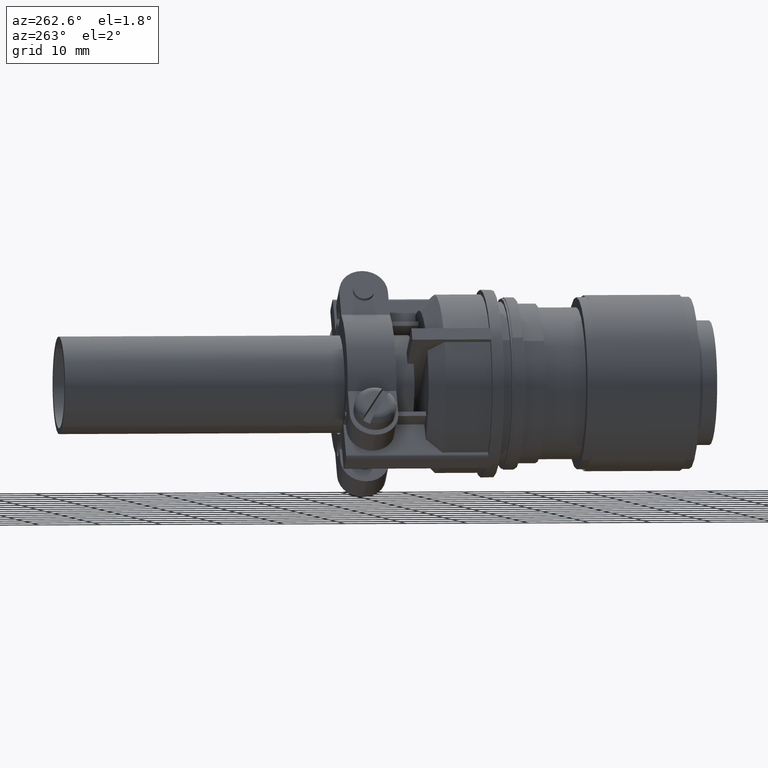
[diagram: clean part render]
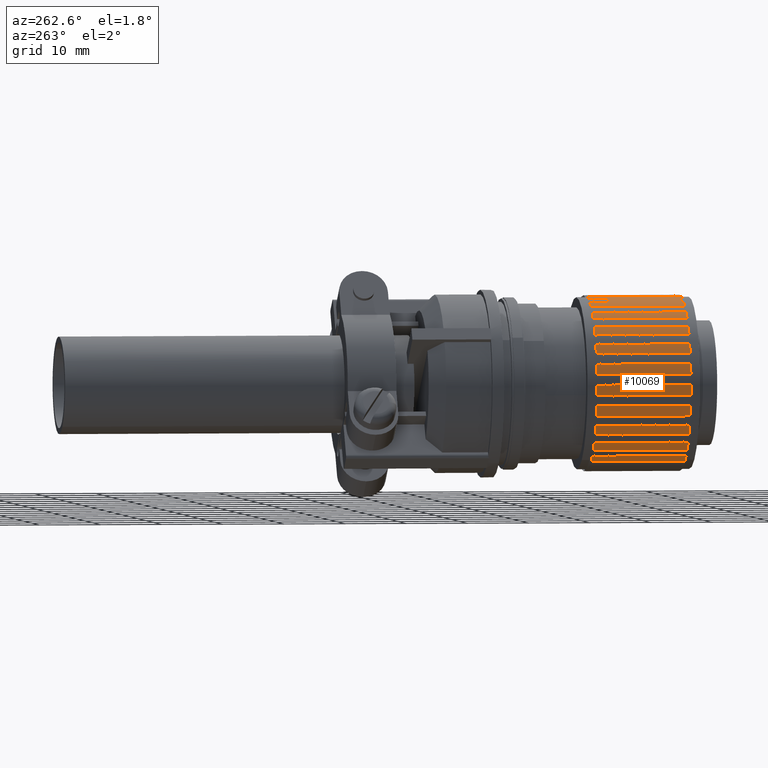
[diagram: same view with one face highlighted and labeled with its STEP entity id]
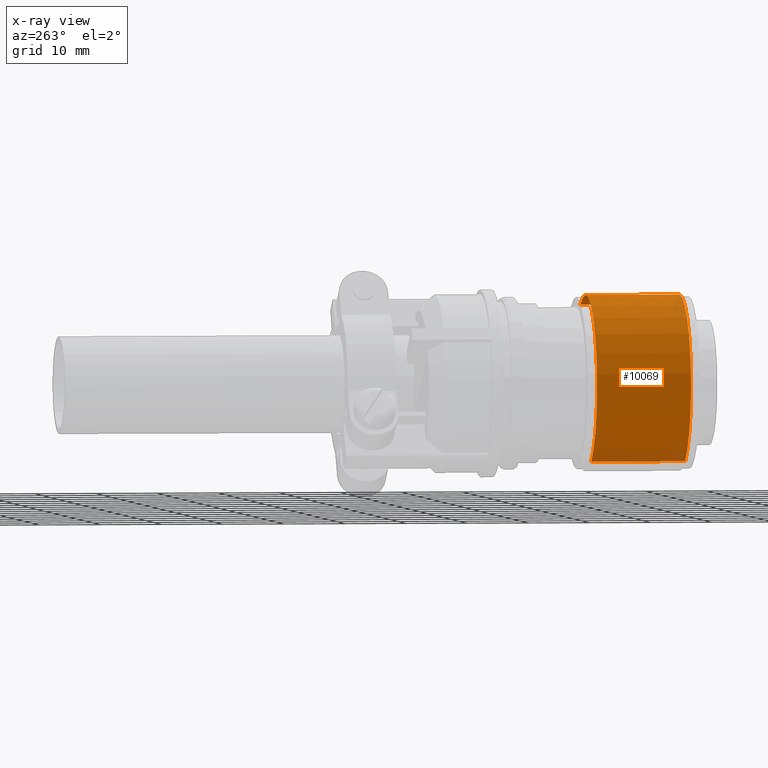
[diagram: x-ray of the same camera — body ghosted, the highlighted face saturated]
A machine part, auxiliary view. The second image highlights one B-rep face of the part: STEP entity #10069.
The next image is the same camera in x-ray: the body ghosted, the highlighted face saturated — about 0% of this face is hidden behind the body in this view.
In plain terms, the highlighted cylindrical surface (partial cylindrical patch) has radius 14.2875 mm, axis along (0, -1, 0).
Its self-contained STEP definition (entity closure, byte-faithful):
#1623 = AXIS2_PLACEMENT_3D ( 'NONE', #14962, #14964, #14965 ) ;
#1624 = AXIS2_PLACEMENT_3D ( 'NONE', #14969, #14970, #14972 ) ;
#3926 = LINE ( 'NONE', #14870, #3934 ) ;
#3930 = LINE ( 'NONE', #14880, #3940 ) ;
#3934 = VECTOR ( 'NONE', #14865, 39.37007874015748100 ) ;
#3940 = VECTOR ( 'NONE', #14867, 39.37007874015748100 ) ;
#3970 = CIRCLE ( 'NONE', #1623, 0.5625000000000000000 ) ;
#3972 = CIRCLE ( 'NONE', #1624, 0.5625000000000000000 ) ;
#5815 = VERTEX_POINT ( 'NONE', #6479 ) ;
#5872 = VERTEX_POINT ( 'NONE', #6496 ) ;
#6479 = CARTESIAN_POINT ( 'NONE',  ( 0.2697034787497700800, 0.7949999999999998200, 0.4936256512280052200 ) ) ;
#6496 = CARTESIAN_POINT ( 'NONE',  ( 0.2697034787497700800, 0.1899999999999999700, 0.4936256512280052200 ) ) ;
#6723 = VERTEX_POINT ( 'NONE', #12246 ) ;
#10069 = ADVANCED_FACE ( 'NONE', ( #20611 ), #20625, .T. ) ;
#11050 = EDGE_LOOP ( 'NONE', ( #16117, #16116, #16115, #16114 ) ) ;
#12246 = CARTESIAN_POINT ( 'NONE',  ( -0.2697034787497700800, 0.1899999999999999700, -0.4936256512280052800 ) ) ;
#13398 = DIRECTION ( 'NONE',  ( -0.4794728511107023700, 0.0000000000000000000, -0.8775567132942315700 ) ) ;
#13404 = DIRECTION ( 'NONE',  ( -0.0000000000000000000, -1.000000000000000000, 0.0000000000000000000 ) ) ;
#13406 = CARTESIAN_POINT ( 'NONE',  ( 0.0000000000000000000, 0.1299999999999999800, 0.0000000000000000000 ) ) ;
#14865 = DIRECTION ( 'NONE',  ( -0.0000000000000000000, -1.000000000000000000, 0.0000000000000000000 ) ) ;
#14867 = DIRECTION ( 'NONE',  ( -0.0000000000000000000, -1.000000000000000000, 0.0000000000000000000 ) ) ;
#14870 = CARTESIAN_POINT ( 'NONE',  ( 0.2697034787497701300, 0.1299999999999999800, 0.4936256512280052800 ) ) ;
#14880 = CARTESIAN_POINT ( 'NONE',  ( -0.2697034787497700800, 0.1299999999999999800, -0.4936256512280052800 ) ) ;
#14962 = CARTESIAN_POINT ( 'NONE',  ( 0.0000000000000000000, 0.1899999999999999700, 0.0000000000000000000 ) ) ;
#14964 = DIRECTION ( 'NONE',  ( -0.0000000000000000000, -1.000000000000000000, 0.0000000000000000000 ) ) ;
#14965 = DIRECTION ( 'NONE',  ( -0.4794728511107023700, 0.0000000000000000000, -0.8775567132942315700 ) ) ;
#14969 = CARTESIAN_POINT ( 'NONE',  ( 0.0000000000000000000, 0.7949999999999998200, 0.0000000000000000000 ) ) ;
#14970 = DIRECTION ( 'NONE',  ( -0.0000000000000000000, -1.000000000000000000, 0.0000000000000000000 ) ) ;
#14972 = DIRECTION ( 'NONE',  ( -0.4794728511107023700, 0.0000000000000000000, -0.8775567132942315700 ) ) ;
#16114 = ORIENTED_EDGE ( 'NONE', *, *, #17154, .F. ) ;
#16115 = ORIENTED_EDGE ( 'NONE', *, *, #17141, .T. ) ;
#16116 = ORIENTED_EDGE ( 'NONE', *, *, #17155, .T. ) ;
#16117 = ORIENTED_EDGE ( 'NONE', *, *, #17139, .F. ) ;
#16606 = AXIS2_PLACEMENT_3D ( 'NONE', #13406, #13404, #13398 ) ;
#17139 = EDGE_CURVE ( 'NONE', #5815, #5872, #3926, .T. ) ;
#17141 = EDGE_CURVE ( 'NONE', #20935, #6723, #3930, .T. ) ;
#17154 = EDGE_CURVE ( 'NONE', #5872, #6723, #3970, .T. ) ;
#17155 = EDGE_CURVE ( 'NONE', #5815, #20935, #3972, .T. ) ;
#17445 = CARTESIAN_POINT ( 'NONE',  ( -0.2697034787497700800, 0.7949999999999998200, -0.4936256512280052800 ) ) ;
#20611 = FACE_OUTER_BOUND ( 'NONE', #11050, .T. ) ;
#20625 = CYLINDRICAL_SURFACE ( 'NONE', #16606, 0.5625000000000000000 ) ;
#20935 = VERTEX_POINT ( 'NONE', #17445 ) ;